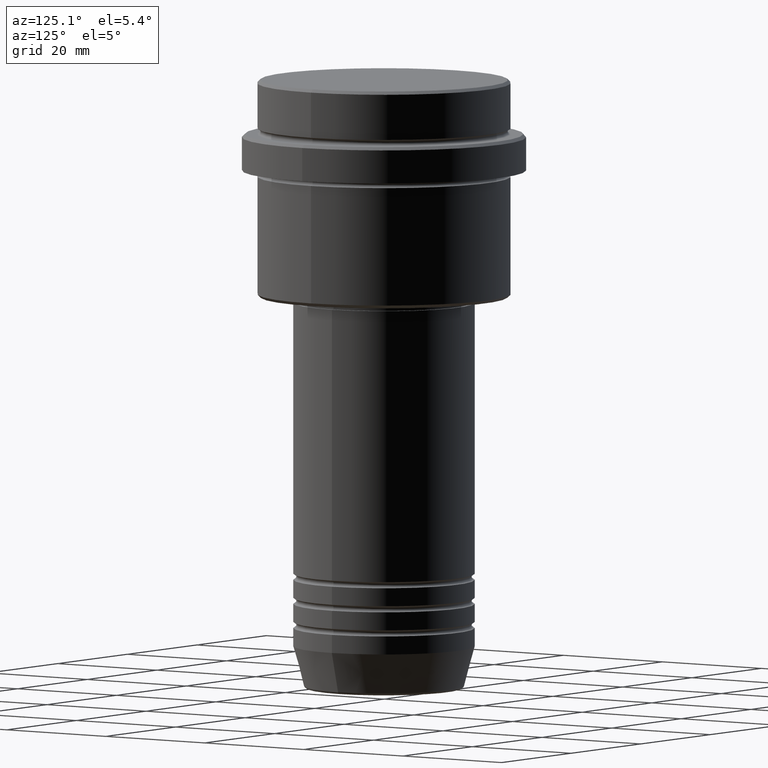
[diagram: clean part render]
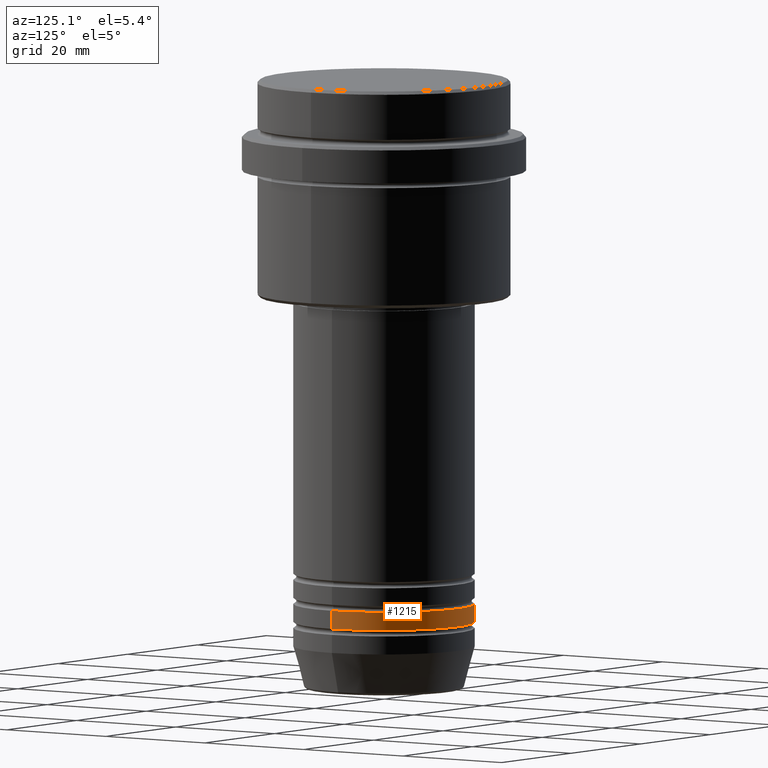
[diagram: same view with one face highlighted and labeled with its STEP entity id]
A machine part, auxiliary view. The second image highlights one B-rep face of the part: STEP entity #1215.
In plain terms, the highlighted cylindrical surface (partial cylindrical patch) has radius 15 mm, axis along (-0, -0, 1).
Its self-contained STEP definition (entity closure, byte-faithful):
#42 = DIRECTION ( 'NONE',  ( 1.000000000000000000, 0.000000000000000000, 0.000000000000000000 ) ) ;
#50 = VECTOR ( 'NONE', #1311, 1000.000000000000000 ) ;
#55 = DIRECTION ( 'NONE',  ( 1.000000000000000000, 0.000000000000000000, 0.000000000000000000 ) ) ;
#70 = DIRECTION ( 'NONE',  ( 1.000000000000000000, 0.000000000000000000, 0.000000000000000000 ) ) ;
#75 = EDGE_LOOP ( 'NONE', ( #738, #1165, #86, #524 ) ) ;
#86 = ORIENTED_EDGE ( 'NONE', *, *, #860, .F. ) ;
#129 = VERTEX_POINT ( 'NONE', #291 ) ;
#138 = CARTESIAN_POINT ( 'NONE',  ( 0.000000000000000000, 0.000000000000000000, -86.99999999999988631 ) ) ;
#156 = DIRECTION ( 'NONE',  ( -0.000000000000000000, -0.000000000000000000, 1.000000000000000000 ) ) ;
#165 = FACE_OUTER_BOUND ( 'NONE', #75, .T. ) ;
#186 = VERTEX_POINT ( 'NONE', #309 ) ;
#235 = LINE ( 'NONE', #557, #50 ) ;
#238 = DIRECTION ( 'NONE',  ( -0.000000000000000000, -0.000000000000000000, 1.000000000000000000 ) ) ;
#240 = AXIS2_PLACEMENT_3D ( 'NONE', #776, #238, #42 ) ;
#291 = CARTESIAN_POINT ( 'NONE',  ( 15.00000000000000000, 0.000000000000000000, -89.99999999999988631 ) ) ;
#309 = CARTESIAN_POINT ( 'NONE',  ( -15.00000000000000000, 1.836970198721029589E-15, -86.99999999999988631 ) ) ;
#347 = CIRCLE ( 'NONE', #240, 15.00000000000000000 ) ;
#377 = DIRECTION ( 'NONE',  ( -0.000000000000000000, -0.000000000000000000, 1.000000000000000000 ) ) ;
#389 = VERTEX_POINT ( 'NONE', #771 ) ;
#447 = AXIS2_PLACEMENT_3D ( 'NONE', #138, #156, #55 ) ;
#524 = ORIENTED_EDGE ( 'NONE', *, *, #1060, .F. ) ;
#557 = CARTESIAN_POINT ( 'NONE',  ( 15.00000000000000000, 0.000000000000000000, 0.000000000000000000 ) ) ;
#701 = CYLINDRICAL_SURFACE ( 'NONE', #1160, 15.00000000000000000 ) ;
#738 = ORIENTED_EDGE ( 'NONE', *, *, #1137, .T. ) ;
#771 = CARTESIAN_POINT ( 'NONE',  ( -15.00000000000000000, 1.836970198721029589E-15, -89.99999999999988631 ) ) ;
#776 = CARTESIAN_POINT ( 'NONE',  ( 0.000000000000000000, 0.000000000000000000, -89.99999999999988631 ) ) ;
#827 = CARTESIAN_POINT ( 'NONE',  ( 0.000000000000000000, 0.000000000000000000, 0.000000000000000000 ) ) ;
#860 = EDGE_CURVE ( 'NONE', #956, #186, #1065, .T. ) ;
#865 = VECTOR ( 'NONE', #1120, 1000.000000000000000 ) ;
#951 = CARTESIAN_POINT ( 'NONE',  ( 15.00000000000000000, 0.000000000000000000, -86.99999999999988631 ) ) ;
#956 = VERTEX_POINT ( 'NONE', #951 ) ;
#1010 = LINE ( 'NONE', #1102, #865 ) ;
#1060 = EDGE_CURVE ( 'NONE', #129, #956, #235, .T. ) ;
#1065 = CIRCLE ( 'NONE', #447, 15.00000000000000000 ) ;
#1090 = EDGE_CURVE ( 'NONE', #389, #186, #1010, .T. ) ;
#1102 = CARTESIAN_POINT ( 'NONE',  ( -15.00000000000000000, 1.836970198721029589E-15, 0.000000000000000000 ) ) ;
#1120 = DIRECTION ( 'NONE',  ( -0.000000000000000000, -0.000000000000000000, 1.000000000000000000 ) ) ;
#1137 = EDGE_CURVE ( 'NONE', #129, #389, #347, .T. ) ;
#1160 = AXIS2_PLACEMENT_3D ( 'NONE', #827, #377, #70 ) ;
#1165 = ORIENTED_EDGE ( 'NONE', *, *, #1090, .T. ) ;
#1215 = ADVANCED_FACE ( 'NONE', ( #165 ), #701, .T. ) ;
#1311 = DIRECTION ( 'NONE',  ( -0.000000000000000000, -0.000000000000000000, 1.000000000000000000 ) ) ;